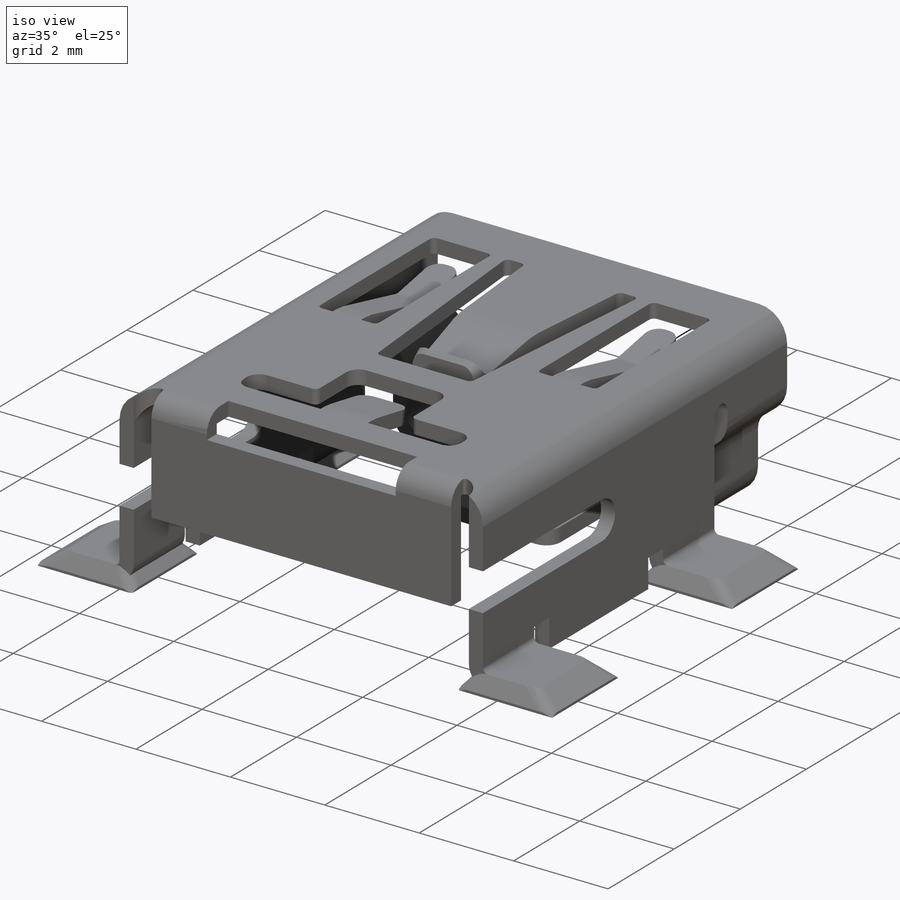
[diagram: iso view]
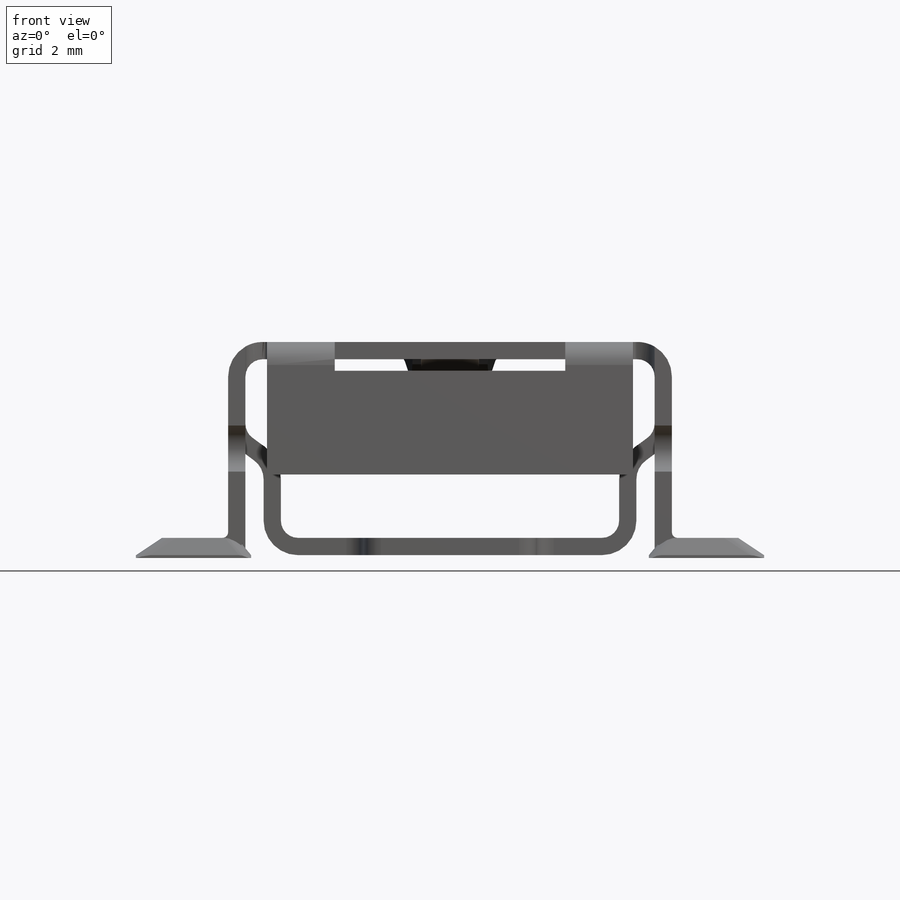
[diagram: front view]
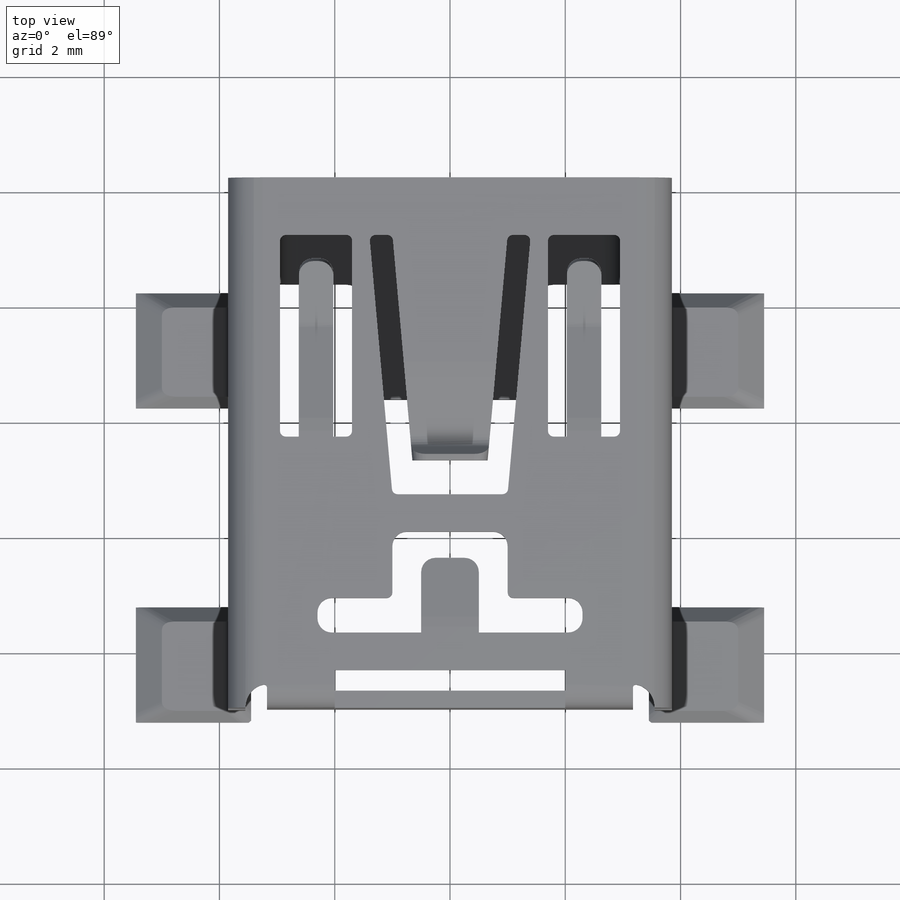
[diagram: top view]
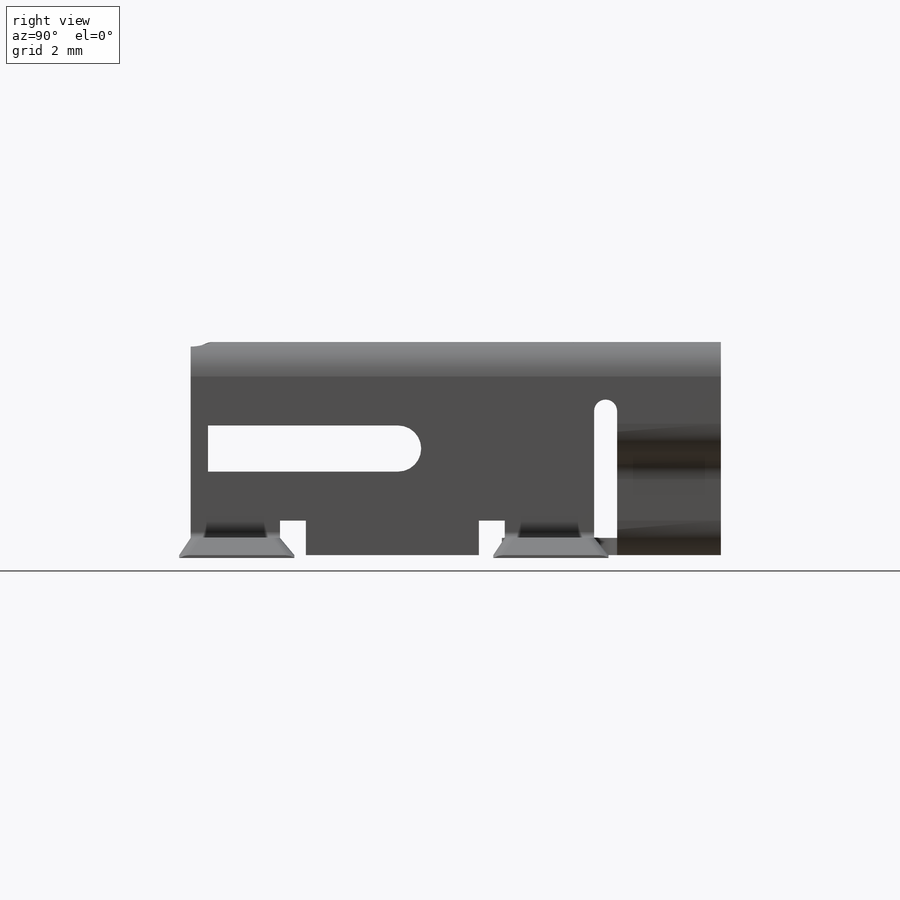
[diagram: right view]
SOLIDWORKS PART (.sldprt)
format: sldprt  version: not decoded by parser v0  size: 1,148,416 bytes
history: native  units: mm
features: sketch x24, cut_extrude x10, fillet x9, pattern_linear x2, extrude x2, mirror x2, material x1, plane x1 (+13 scaffold rows collapsed)
feature tree (64):
  scaffold x13  (default folders/planes/origin — collapsed)
  material  "Stainless Steel (ferritic)"
  sketch  "Sketch1"  dims[c1.D3=0.6mm c1.D1=7.7mm c1.D2=3.7mm c2.D1=7.0mm c2.D5=0.3mm c2.D6=1.0mm c2.D7=5.0mm]
  sketch  "Sketch4"  dims[c1.D1=0.6mm c1.D2=0.4mm c1.D3=0.6mm c1.D4=6.47mm c1.D5=1.42mm c1.D6=~2.137348mm c1.D7=3.7mm c2.D6=1.42mm c2.D1=2.2mm c2.D5=0.3mm c3.D6=1.0mm c3.D7=5.0mm]
  sketch  "Sketch5"  dims[c1.D1=1.8mm c1.D2=2.5mm c1.D3=1.45mm c2.D2=2.5mm]
  cut_extrude  "Cut-Extrude1"  [1 undecoded]
  sketch  "Sketch6"  dims[D1=0.6mm D2=2.0mm D3=2.0mm D4=3.0mm D5=0.5mm]
  cut_extrude  "Cut-Extrude2"  [1 undecoded]
  sketch  "Sketch7"  dims[c1.D1=0.4mm c1.D2=5.0mm c2.D1=1.55mm c2.D5=0.3mm c2.D6=1.0mm c2.D7=5.0mm]
  sketch  "Sketch8"  dims[c1.D1=0.4mm c1.D2=5.0mm c2.D1=1.55mm c2.D5=0.3mm c2.D6=1.0mm c2.D7=5.0mm]
  pattern_linear  "LPattern1"  Count1=2 Count2=1 Spacing1=5.45mm Spacing2=10mm
  sketch  "Sketch9"  dims[D1=0.52mm D2=8.9mm]
  cut_extrude  "Cut-Extrude4"  Depth=1.55mm
  sketch  "Sketch10"  dims[c1.D6=0.1mm c1.D7=0.1mm c1.D8=0.1mm c1.D9=0.1mm c1.D10=0.1mm c1.D12=0.1mm c1.D21=0.1mm c1.D22=0.25mm c1.D1=5.9mm c1.D2=3.45mm c1.D3=3.5mm c1.D4=2.95mm c1.D5=1.25mm c2.D2=1.2mm c2.D7=2.0mm c2.D8=1.0mm c2.D9=2.8mm c2.D10=2.8mm c3.D9=2.8mm c3.D10=1.4mm c3.D11=4.5mm c3.D13=2.0mm c3.D14=1.0mm c3.D15=0.65mm c3.D16=0.6mm c3.D17=1.75mm c3.D18=4.6mm c3.D19=1.3mm c3.D20=2.3mm]
  cut_extrude  "Cut-Extrude5"  Depth=1.55mm
  sketch  "Sketch11"  dims[D1=0.3mm D2=2.0mm]
  extrude  "Boss-Extrude1"  Depth=6.35mm
  sketch  "Sketch12"  dims[D3=0.4mm D1=0.8mm D2=0.1mm]
  cut_extrude  "Cut-Extrude6"  Depth=6.35mm
  sketch  "Sketch13"  dims[D1=0.4mm]
  cut_extrude  "Cut-Extrude8"  [1 undecoded]
  sketch  "Sketch14"  dims[D1=4.0mm D2=2.0mm D3=0.65mm]
  cut_extrude  "Cut-Extrude9"  Depth=0.5mm
  fillet  "Fillet4"  Radius=0.05mm
  plane  "Plane1"  Offset=2.325mm
  sketch  "Sketch15"  dims[c1.D3=1.0mm c1.D5=0.2mm c1.D1=0.35mm c1.D2=0.75mm c1.D4=0.1mm c1.D6=3.5mm c2.D4=3.5mm c2.D7=0.1mm c2.D1=0.6mm c2.D5=0.3mm c2.D6=1.0mm c3.D7=5.0mm]
  fillet  "Fillet5"  Radius=0.25mm
  mirror  "Mirror1"
  sketch  "Sketch18"  dims[c1.D1=1.0mm c1.D2=0.1mm c1.D3=2.6mm c1.D4=3.5mm c2.D1=1.0mm c2.D5=0.3mm c2.D6=1.0mm c2.D7=5.0mm]
  fillet  "Fillet6"  Radius=0.25mm
  sketch  "Sketch19"  dims[c1.D4=1.0mm c1.D5=1.0mm c2.D4=0.9mm c2.D2=0.2mm c2.D1=3.9mm c3.D2=3.7mm c3.D3=2.6mm c3.D6=0.1mm c4.D2=4.6mm c4.D6=1.0mm c4.D7=2.2mm c4.D1=4.8mm c4.D4=3.6mm c5.D7=2.3mm c5.D1=2.0mm c5.D5=0.3mm c5.D6=1.0mm c6.D7=5.0mm]
  sketch  "Sketch20"  dims[D1=0.5mm]
  cut_extrude  "Cut-Extrude10"  Depth=2mm
  fillet  "Fillet7"  Radius=0.1mm
  fillet  "Fillet8"  Radius=0.25mm
  sketch  "Sketch21"  dims[D1=2.0mm D2=2.0mm D3=5.45mm D4=10.9mm D5=5.45mm D6=0.25mm]
  extrude  "Boss-Extrude2"  Depth=0.05mm
  sketch  "Sketch22"  dims[c1.D1=4.0mm c1.D2=0.8mm c1.D3=~1.217816mm c1.D4=~1.482184mm c2.D3=1.45mm c2.D4=1.45mm c2.D1=4.0mm]
  cut_extrude  "Cut-Extrude11"  Depth=0.5mm
  sketch  "Sketch23"
  cut_extrude  "Cut-Extrude12"  Depth=0.5mm
  sketch  "Sketch24"
  sketch  "Sketch25"  dims[D1=1.55mm D2=1.3mm]
  fillet  "Fillet11"  Radius=0.25mm
  sketch  "Sketch26"
  sketch  "Sketch27"  dims[D1=1.3mm]
  mirror  "Loft2"
  fillet  "Fillet12"  Radius=0.25mm
  pattern_linear  "LPattern2"  Count1=2 Count2=1 Spacing1=5.45mm Spacing2=10mm
  sketch  "Sketch28"  dims[c1.D1=3.0mm c2.D1=2.0mm c2.D5=0.3mm c2.D6=10.0mm c2.D7=5.0mm]
  fillet  "Fillet13"  Radius=0.3mm
  fillet  "Fillet14"  Radius=0.3mm
decode coverage: 41 of 49 modeling features carry decoded parameters
note: ~ marks probable driven/reference dimensions
note: 3 parameter values undecoded
summary: no parameter record found for 3 features
note: suppression state not decoded; provenance and decode notes live in map.json
